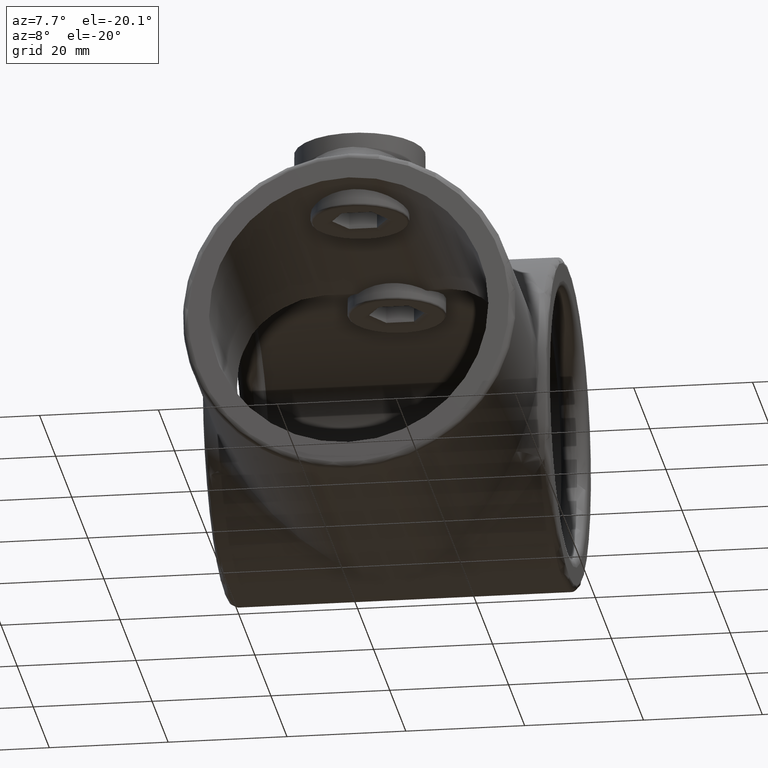
[diagram: clean part render]
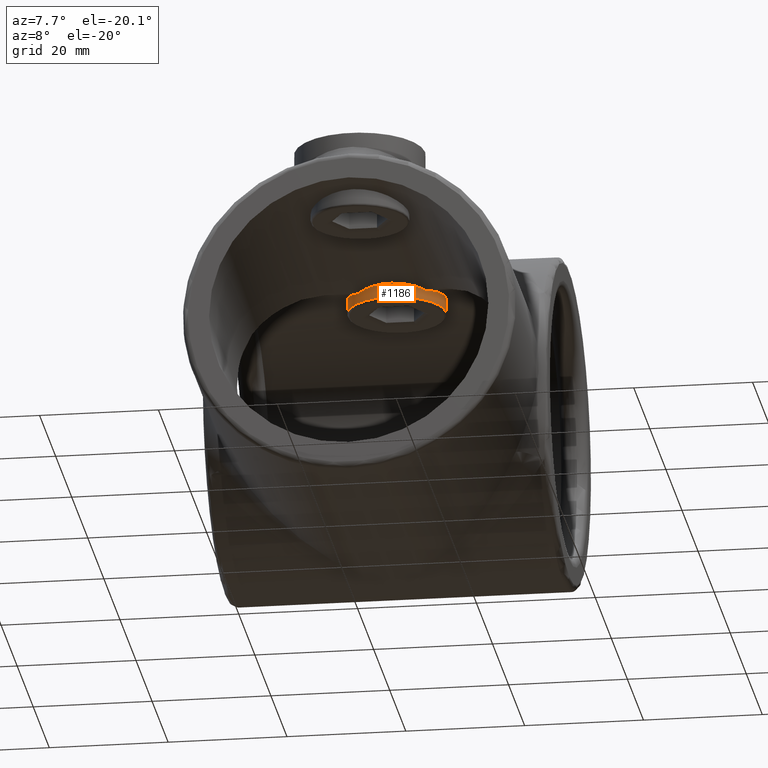
[diagram: same view with one face highlighted and labeled with its STEP entity id]
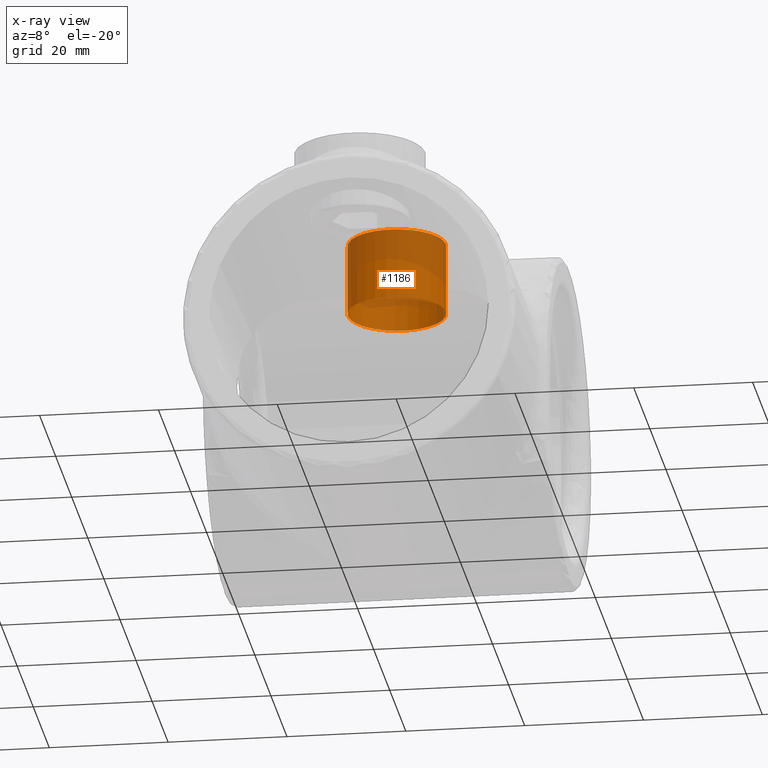
[diagram: x-ray of the same camera — body ghosted, the highlighted face saturated]
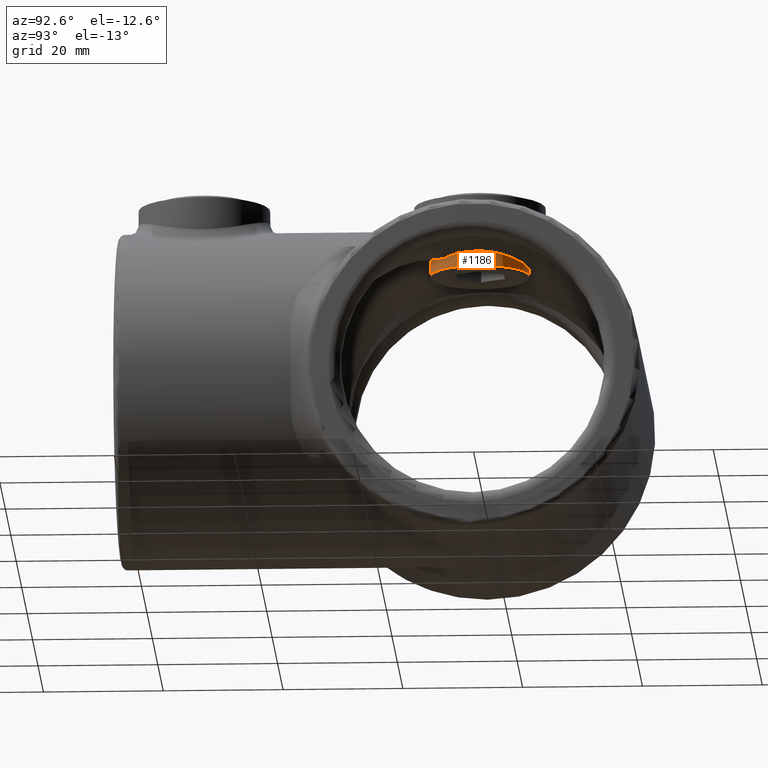
[diagram: same view with one face highlighted and labeled with its STEP entity id]
A machine part, auxiliary view. The second image highlights one B-rep face of the part: STEP entity #1186.
The next image is the same camera in x-ray: the body ghosted, the highlighted face saturated — about 42% of this face is hidden behind the body in this view.
A second angle (auxiliary view) of the same face is appended — the face is thin or edge-on in the first view.
In plain terms, the highlighted cylindrical surface (bore or boss wall) has radius 8.25 mm, axis along (0, 0, -1).
Its self-contained STEP definition (entity closure, byte-faithful):
#340 = CIRCLE ( 'NONE', #2633, 8.250000000000001776 ) ;
#417 = ORIENTED_EDGE ( 'NONE', *, *, #3639, .T. ) ;
#505 = FACE_OUTER_BOUND ( 'NONE', #1777, .T. ) ;
#634 = DIRECTION ( 'NONE',  ( 0.000000000000000000, 1.000000000000000000, 0.000000000000000000 ) ) ;
#1061 = ORIENTED_EDGE ( 'NONE', *, *, #2713, .T. ) ;
#1177 = DIRECTION ( 'NONE',  ( 0.000000000000000000, -1.000000000000000000, 0.000000000000000000 ) ) ;
#1186 = ADVANCED_FACE ( 'NONE', ( #505, #3937 ), #3387, .T. ) ;
#1194 = CIRCLE ( 'NONE', #2604, 8.250000000000001776 ) ;
#1209 = DIRECTION ( 'NONE',  ( 1.110223024625156294E-16, 0.000000000000000000, -1.000000000000000000 ) ) ;
#1608 = DIRECTION ( 'NONE',  ( -1.110223024625156294E-16, 0.000000000000000000, 1.000000000000000000 ) ) ;
#1624 = CARTESIAN_POINT ( 'NONE',  ( 0.000000000000000000, 0.5000000000000004441, 0.000000000000000000 ) ) ;
#1777 = EDGE_LOOP ( 'NONE', ( #1061 ) ) ;
#1820 = CARTESIAN_POINT ( 'NONE',  ( -9.159339953157541458E-16, 12.49999999999999645, 8.250000000000001776 ) ) ;
#1951 = CARTESIAN_POINT ( 'NONE',  ( 0.000000000000000000, 12.49999999999999645, 0.000000000000000000 ) ) ;
#2261 = DIRECTION ( 'NONE',  ( -0.000000000000000000, -1.000000000000000000, -0.000000000000000000 ) ) ;
#2375 = CARTESIAN_POINT ( 'NONE',  ( 0.000000000000000000, 12.99999999999999822, 0.000000000000000000 ) ) ;
#2571 = DIRECTION ( 'NONE',  ( -1.110223024625156294E-16, 0.000000000000000000, 1.000000000000000000 ) ) ;
#2604 = AXIS2_PLACEMENT_3D ( 'NONE', #1624, #634, #1608 ) ;
#2633 = AXIS2_PLACEMENT_3D ( 'NONE', #1951, #2261, #2571 ) ;
#2713 = EDGE_CURVE ( 'NONE', #2931, #2931, #1194, .T. ) ;
#2729 = CARTESIAN_POINT ( 'NONE',  ( -9.159339953157541458E-16, 0.5000000000000004441, 8.250000000000001776 ) ) ;
#2773 = VERTEX_POINT ( 'NONE', #1820 ) ;
#2931 = VERTEX_POINT ( 'NONE', #2729 ) ;
#2966 = EDGE_LOOP ( 'NONE', ( #417 ) ) ;
#3336 = AXIS2_PLACEMENT_3D ( 'NONE', #2375, #1177, #1209 ) ;
#3387 = CYLINDRICAL_SURFACE ( 'NONE', #3336, 8.250000000000001776 ) ;
#3639 = EDGE_CURVE ( 'NONE', #2773, #2773, #340, .T. ) ;
#3937 = FACE_OUTER_BOUND ( 'NONE', #2966, .T. ) ;